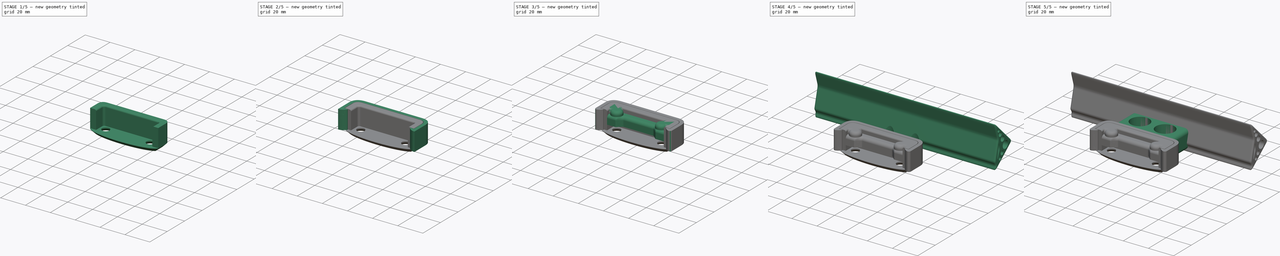
[diagram: build sequence overview — one tinted view per stage of 5, left to right]
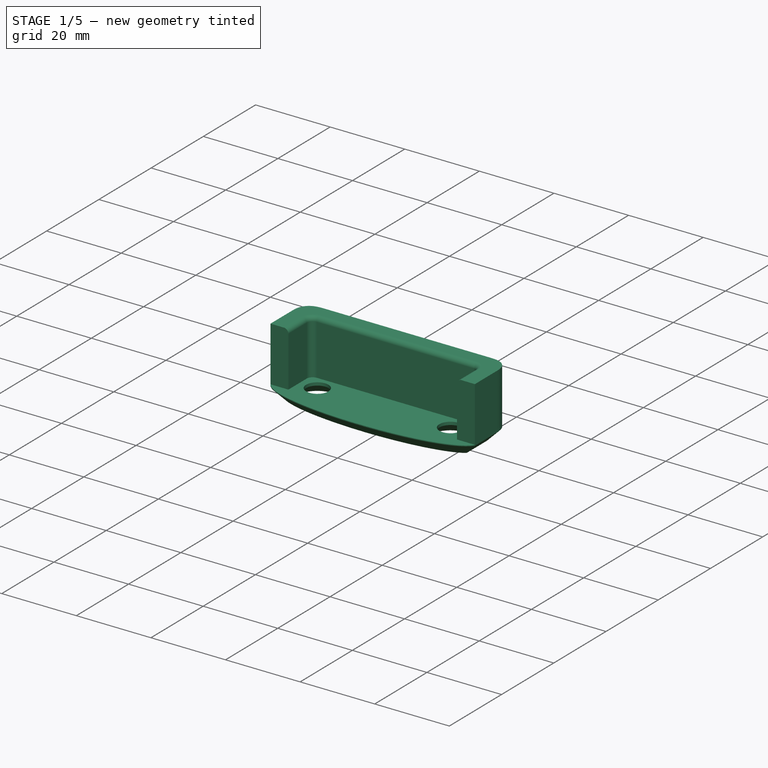
[diagram: stage 1 of 5 — iso view after this stage's code; geometry added in this stage tinted green]
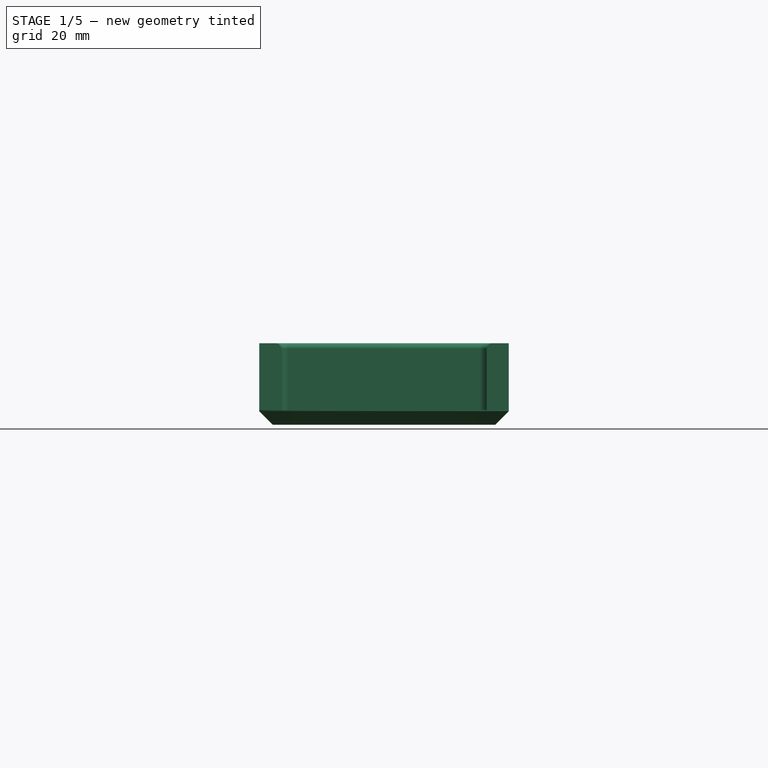
[diagram: stage 1 of 5 — front view after this stage's code; geometry added in this stage tinted green]
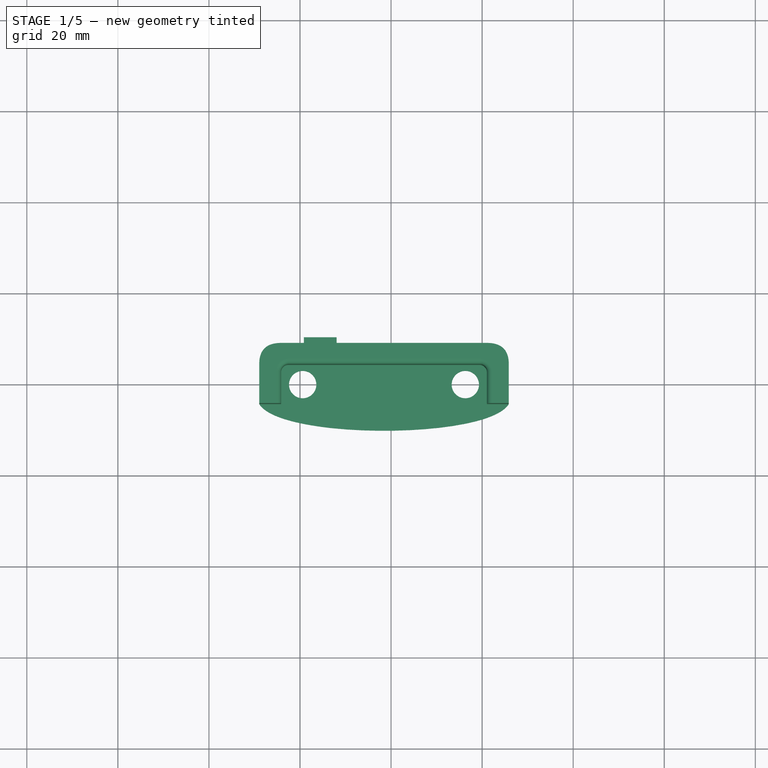
[diagram: stage 1 of 5 — top view after this stage's code; geometry added in this stage tinted green]
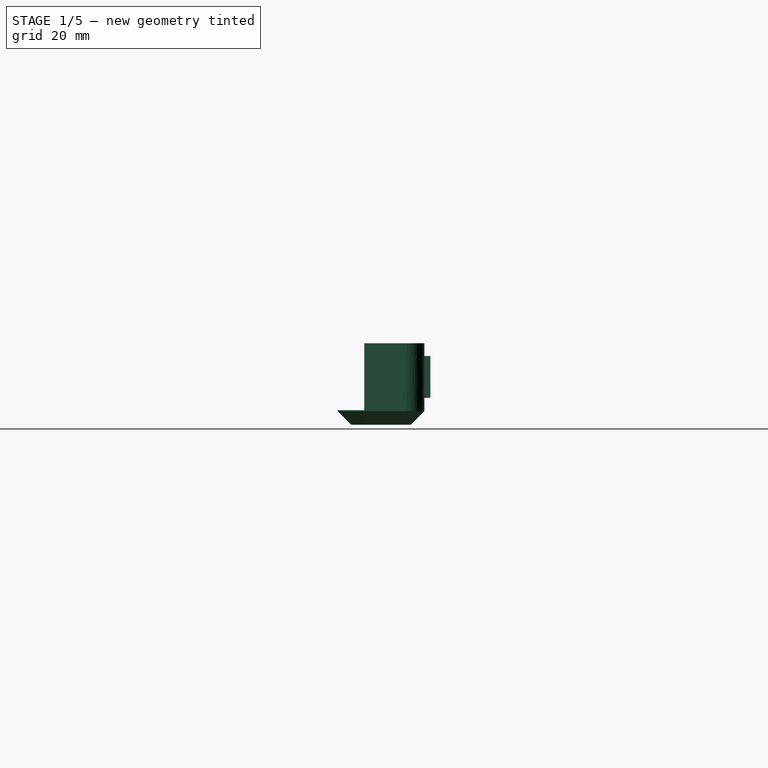
[diagram: stage 1 of 5 — right view after this stage's code; geometry added in this stage tinted green]
FCSTD DOCUMENT  (FreeCAD 0.19R0.19.2)
Label: 045
License: All rights reserved
LicenseURL: http://en.wikipedia.org/wiki/All_rights_reserved
objects: Part::Fillet×7, Sketcher::SketchObject×6, Part::Extrusion×6, Part::Box×5, Part::MultiFuse×5, Part::Cylinder×4, Part::Cut×3, Part::Chamfer×2
note: 38 computed .brp shape members not serialized (recipe doc carries the construction recipe); baked Part::Feature solids carry a one-line shape summary decoded from their .brp

FEATURE [Sketcher::SketchObject] Sketch001  label="attatchmentPieceSurround"
  FullyConstrained = true
  sketch-geometry (18):
    g0: LineSegment StartX=25.85 StartY=-4.3 StartZ=0 EndX=21.05 EndY=-4.3 EndZ=0
    g1: LineSegment StartX=25.85 StartY=-4.3 StartZ=0 EndX=25.85 EndY=4.3 EndZ=0
    g2: LineSegment StartX=-21.05 StartY=8.9 StartZ=0 EndX=21.05 EndY=8.9 EndZ=0
    g3: Circle CenterX=21.05 CenterY=8.9 CenterZ=0 NormalX=0 NormalY=0 NormalZ=1 AngleXU=0 Radius=1
    g4: Circle CenterX=25.85 CenterY=8.9 CenterZ=0 NormalX=0 NormalY=0 NormalZ=1 AngleXU=0 Radius=1
    g5: Circle CenterX=25.85 CenterY=4.3 CenterZ=0 NormalX=0 NormalY=0 NormalZ=1 AngleXU=0 Radius=1
    g6: BSplineCurve PolesCount=3 KnotsCount=2 Degree=2 IsPeriodic=0
    g7: GeomPoint X=21.05 Y=8.9 Z=0
    g8: GeomPoint X=25.85 Y=4.3 Z=0
    g9: ArcOfCircle CenterX=19.45 CenterY=2.7 CenterZ=0 NormalX=0 NormalY=0 NormalZ=1 AngleXU=0 Radius=1.6 StartAngle=0 EndAngle=1.5708
    g10: LineSegment StartX=21.05 StartY=2.7 StartZ=0 EndX=21.05 EndY=-4.3 EndZ=0
    g11: BSplineCurve PolesCount=3 KnotsCount=2 Degree=2 IsPeriodic=0
    g12: LineSegment StartX=-28.95 StartY=-4.3 StartZ=0 EndX=-28.95 EndY=4.3 EndZ=0
    g13: LineSegment StartX=-24.15 StartY=-4.3 StartZ=0 EndX=-28.95 EndY=-4.3 EndZ=0
    g14: LineSegment StartX=-24.15 StartY=2.7 StartZ=0 EndX=-24.15 EndY=-4.3 EndZ=0
    g15: ArcOfCircle CenterX=-22.55 CenterY=2.7 CenterZ=0 NormalX=0 NormalY=0 NormalZ=1 AngleXU=0 Radius=1.6 StartAngle=1.5708 EndAngle=3.14159
    g16: LineSegment StartX=-24.15 StartY=8.9 StartZ=0 EndX=-21.05 EndY=8.9 EndZ=0
    g17: LineSegment StartX=-22.55 StartY=4.3 StartZ=0 EndX=19.45 EndY=4.3 EndZ=0
  constraints (38):
    c: Horizontal(g0)
    c: Vertical(g1)
    c: Coincident(g1,g0)
    c: Horizontal(g2)
    c: Distance(g2) = 42.1
    c: Block(g2)
    c: Coincident(g6,g2)
    c: Weight(g3) = 1
    c: Equal(g3,g4)
    c: Equal(g3,g5)
    c: Coincident(g6,g1)
    c: InternalAlignment(g3,g6)
    c: InternalAlignment(g4,g6)
    c: InternalAlignment(g5,g6)
    c: InternalAlignment(g7,g6)
    c: InternalAlignment(g8,g6)
    c: Block(g0)
    c: Block(g6)
    c: Block(g9)
    c: Coincident(g10,g9)
    c: Coincident(g10,g0)
    c: Vertical(g10)
    c: Horizontal(g13)
    c: Coincident(g12,g13)
    c: Vertical(g12)
    c: Coincident(g11,g12)
    c: Block(g12)
    c: Block(g11)
    c: Block(g15)
    c: Coincident(g14,g15)
    c: Coincident(g14,g13)
    c: Vertical(g14)
    c: Coincident(g16,g11)
    c: Coincident(g16,g2)
    c: Horizontal(g16)
    c: Coincident(g17,g15)
    c: Coincident(g17,g9)
    c: Horizontal(g17)
FEATURE [Part::Extrusion] Extrude001  label="attatchmentPieceSurround001"
  Base = -> Sketch001
  Dir = (0,0,1)
  DirMode = 2
  FaceMakerClass = Part::FaceMakerBullseye
  LengthFwd = 14.7
  LengthRev = 0
  Placement = pos=(0,0,-4.1) rot=(0,0,1;0rad)
  Solid = true
  Symmetric = false
FEATURE [Sketcher::SketchObject] Sketch005  label="attatchmentPieceBottom"
  FullyConstrained = true
  sketch-geometry (20):
    g0: LineSegment StartX=25.85 StartY=-4.3 StartZ=0 EndX=25.85 EndY=4.3 EndZ=0
    g1: LineSegment StartX=-21.05 StartY=8.9 StartZ=0 EndX=21.05 EndY=8.9 EndZ=0
    g2: Circle CenterX=21.05 CenterY=8.9 CenterZ=0 NormalX=0 NormalY=0 NormalZ=1 AngleXU=0 Radius=1
    g3: Circle CenterX=25.85 CenterY=8.9 CenterZ=0 NormalX=0 NormalY=0 NormalZ=1 AngleXU=0 Radius=1
    g4: Circle CenterX=25.85 CenterY=4.3 CenterZ=0 NormalX=0 NormalY=0 NormalZ=1 AngleXU=0 Radius=1
    g5: BSplineCurve PolesCount=3 KnotsCount=2 Degree=2 IsPeriodic=0
    g6: GeomPoint X=21.05 Y=8.9 Z=0
    g7: GeomPoint X=25.85 Y=4.3 Z=0
    g8: BSplineCurve PolesCount=3 KnotsCount=2 Degree=2 IsPeriodic=0
    g9: LineSegment StartX=-28.95 StartY=-4.3 StartZ=0 EndX=-28.95 EndY=4.3 EndZ=0
    g10: LineSegment StartX=-24.15 StartY=8.9 StartZ=0 EndX=-21.05 EndY=8.9 EndZ=0
    g11: Circle CenterX=-19.41 CenterY=0 CenterZ=0 NormalX=0 NormalY=0 NormalZ=1 AngleXU=0 Radius=3
    g12: Circle CenterX=16.3103 CenterY=0 CenterZ=0 NormalX=0 NormalY=0 NormalZ=1 AngleXU=0 Radius=3
    g13-g16: Circle x4 (B-spline internal-alignment scaffolding for g17; pole/knot coordinates omitted)
    g17: BSplineCurve PolesCount=4 KnotsCount=2 Degree=3 IsPeriodic=0
    g18: GeomPoint X=-28.95 Y=-4.3 Z=0
    g19: GeomPoint X=25.85 Y=-4.3 Z=0
  constraints (36):
    c: Vertical(g0)
    c: Horizontal(g1)
    c: Distance(g1) = 42.1
    c: Block(g1)
    c: Coincident(g5,g1)
    c: Weight(g2) = 1
    c: Equal(g2,g3)
    c: Equal(g2,g4)
    c: Coincident(g5,g0)
    c: InternalAlignment(g2,g5)
    c: InternalAlignment(g3,g5)
    c: InternalAlignment(g4,g5)
    c: InternalAlignment(g6,g5)
    c: InternalAlignment(g7,g5)
    c: Block(g5)
    c: Vertical(g9)
    c: Coincident(g8,g9)
    c: Block(g9)
    c: Block(g8)
    c: Coincident(g10,g8)
    c: Coincident(g10,g1)
    c: Horizontal(g10)
    c: PointOnObject(g12,g-1)
    c: PointOnObject(g11,g-1)
    c: Block(g11)
    c: Block(g12)
    c: Coincident(g17,g9)
    c: Weight(g13) = 1
    c: Equal(g13,g14)
    c: Equal(g13,g15)
    c: Equal(g13,g16)
    c: Coincident(g17,g0)
    c: InternalAlignment(g13-g16 -> g17) x4
    c: InternalAlignment(g18,g17)
    c: InternalAlignment(g19,g17)
    c: Block(g17)
FEATURE [Part::Extrusion] Extrude005  label="attatchmentPieceBottom001"
  Base = -> Sketch005
  Dir = (0,0,1)
  DirMode = 2
  FaceMakerClass = Part::FaceMakerBullseye
  LengthFwd = 3.2
  LengthRev = 0
  Placement = pos=(0,0,-7.3) rot=(0,0,1;0rad)
  Solid = true
  Symmetric = false
FEATURE [Part::Box] Box004  label="attatchmentPieceSurroundBump001"
  AttacherType = Attacher::AttachEngine3D
  Height = 9.2
  Length = 7.2
  Placement = pos=(-19.15,8.9,-1.4) rot=(0,0,1;0rad)
  Width = 1.3
FEATURE [Part::Chamfer] Chamfer  label="attatchmentPieceBottom002"
  Base = -> Extrude005
  Edges = 7 edges r=2.99: [Edge3,Edge6,Edge9,Edge12,Edge15,Edge18,Edge20]
FEATURE [Part::Fillet] Fillet004  label="attatchmentPieceSurround002"
  Base = -> Extrude001
  Edges = 3 edges r=1.2: [Edge19,Edge25,Edge31]
FEATURE [Part::Chamfer] Chamfer001  label="attatchmentPieceBottom003"
  Base = -> Chamfer
  Edges = 2 edges r=2.4: [Edge29,Edge30]
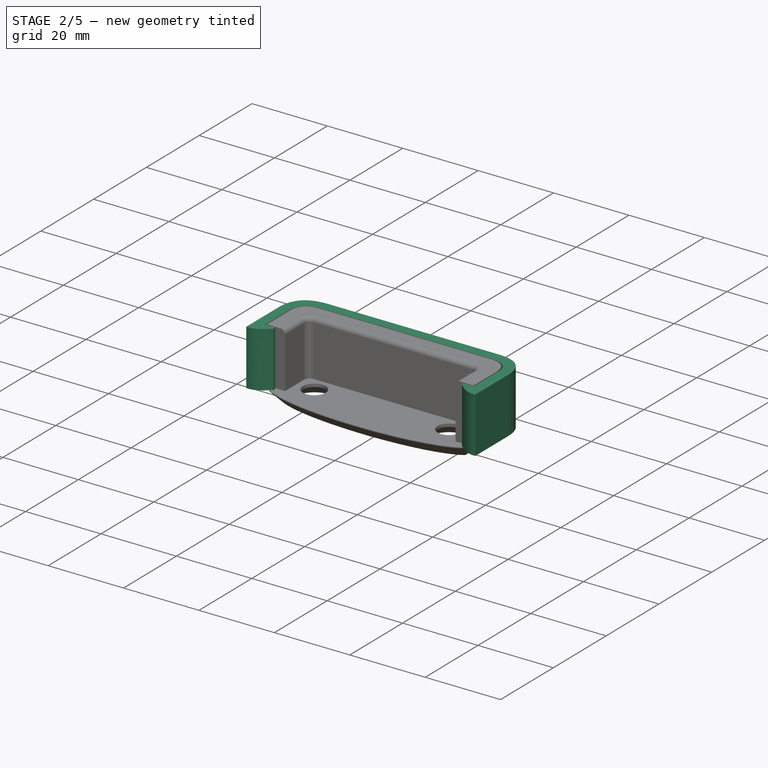
[diagram: stage 2 of 5 — iso view after this stage's code; geometry added in this stage tinted green]
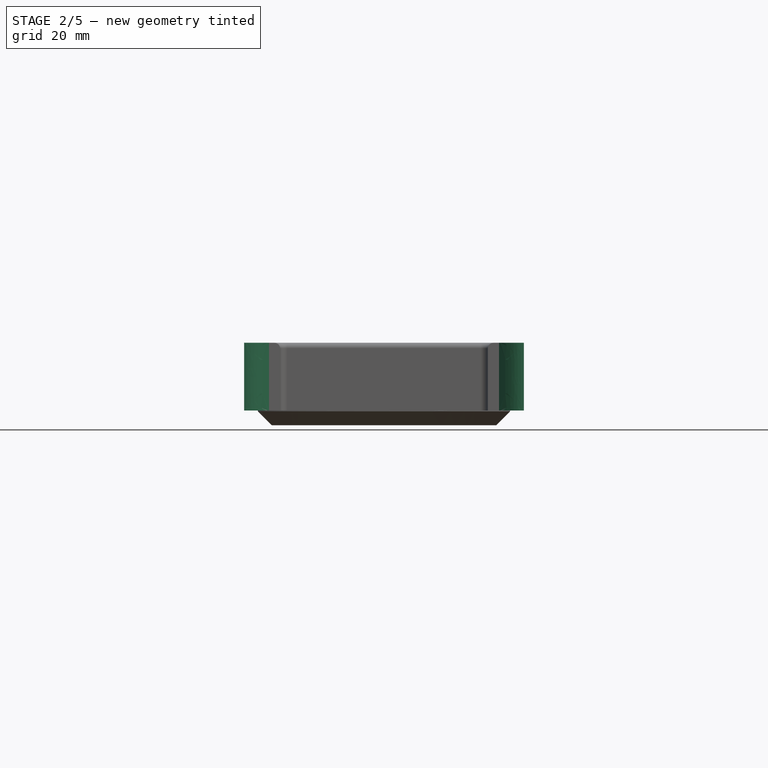
[diagram: stage 2 of 5 — front view after this stage's code; geometry added in this stage tinted green]
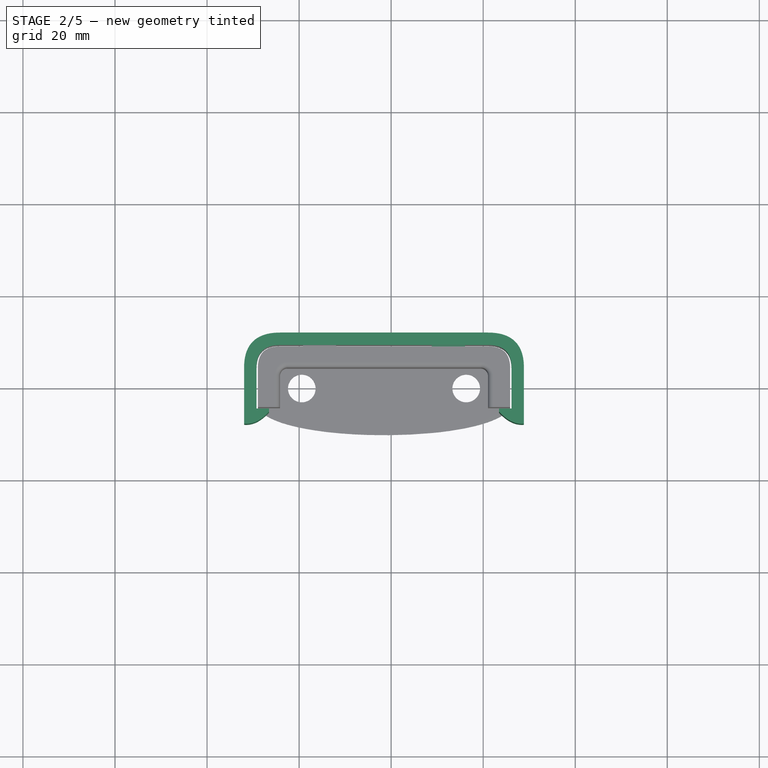
[diagram: stage 2 of 5 — top view after this stage's code; geometry added in this stage tinted green]
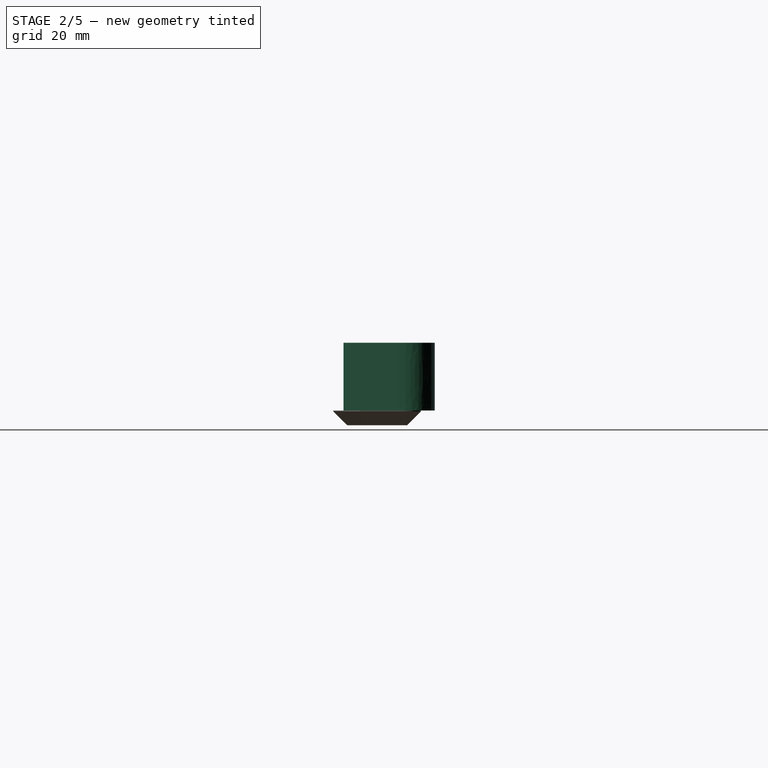
[diagram: stage 2 of 5 — right view after this stage's code; geometry added in this stage tinted green]
FEATURE [Part::Extrusion] Extrude006  label="mainBumpperPieceAttatchment001"
  Base = -> Sketch003
  Dir = (0,0,1)
  DirMode = 2
  FaceMakerClass = Part::FaceMakerBullseye
  LengthFwd = 14.7
  LengthRev = 0
  Placement = pos=(0,0,-4.1) rot=(0,0,1;0rad)
  Solid = true
  Symmetric = false
FEATURE [Part::Box] Box001  label="bumpperExtensionBumpHole"
  AttacherType = Attacher::AttachEngine3D
  Height = 10
  Length = 8
  Placement = pos=(8.45,9.2,-1.8) rot=(0,0,1;0rad)
  Width = 1.3
FEATURE [Part::Box] Box002  label="bumpperExtensionBumpHole001"
  AttacherType = Attacher::AttachEngine3D
  Height = 10
  Length = 8
  Placement = pos=(-19.55,9.2,-1.8) rot=(0,0,1;0rad)
  Width = 1.3
FEATURE [Part::Box] Box003  label="attatchmentPieceSurroundBump"
  AttacherType = Attacher::AttachEngine3D
  Height = 9.2
  Length = 7.2
  Placement = pos=(8.85,8.9,-1.4) rot=(0,0,1;0rad)
  Width = 1.3
FEATURE [Part::MultiFuse] Fusion002  label="attatchmentPieceSurroundBump002"
  Shapes = -> [Box004,Box003]
FEATURE [Part::MultiFuse] Fusion003  label="bumpperExtensionBumpHole002"
  Shapes = -> [Box002,Box001]
FEATURE [Part::MultiFuse] Fusion004  label="attatchmentPieceSurround003"
  Shapes = -> [Fusion002,Fillet004]
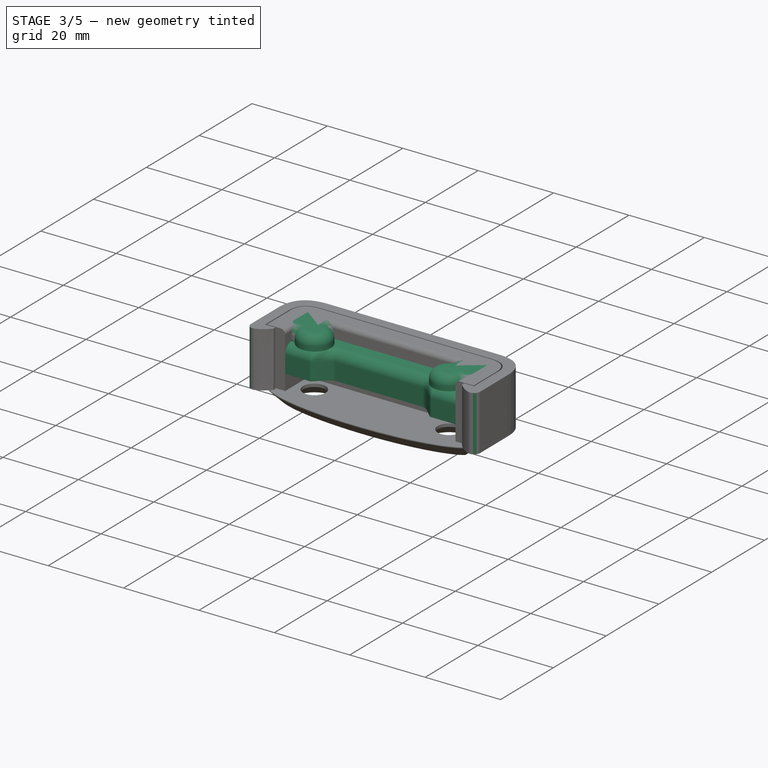
[diagram: stage 3 of 5 — iso view after this stage's code; geometry added in this stage tinted green]
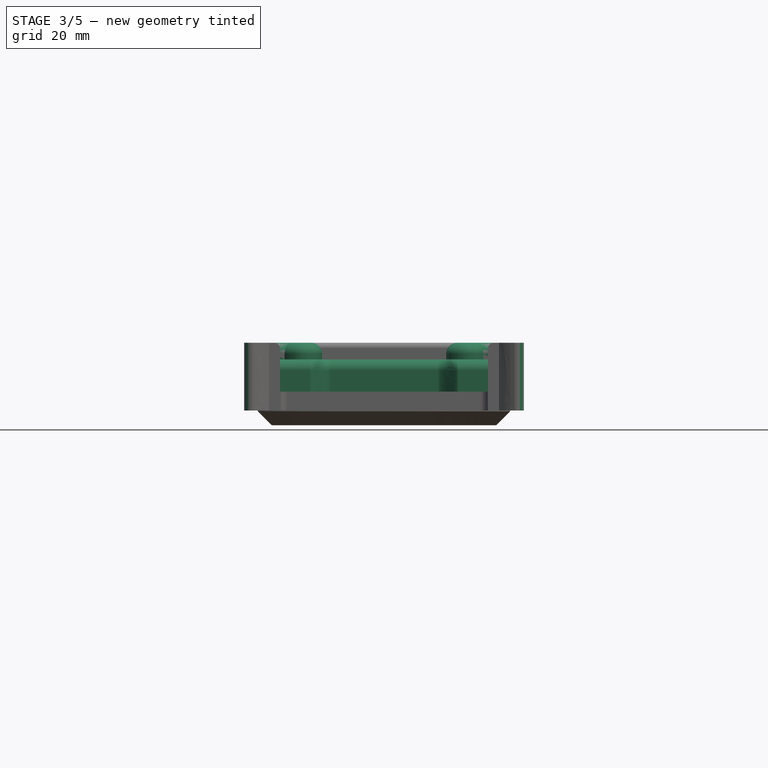
[diagram: stage 3 of 5 — front view after this stage's code; geometry added in this stage tinted green]
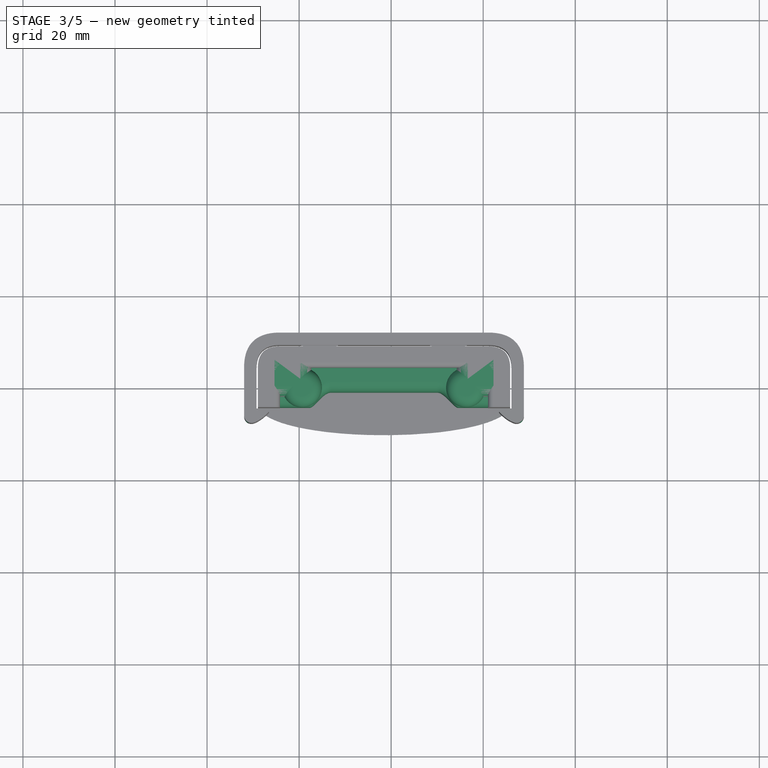
[diagram: stage 3 of 5 — top view after this stage's code; geometry added in this stage tinted green]
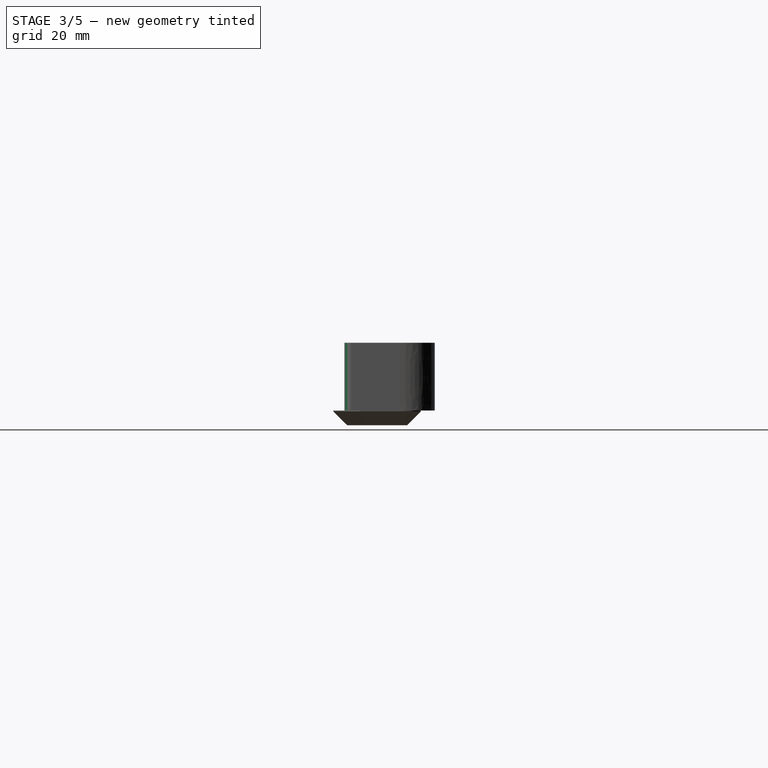
[diagram: stage 3 of 5 — right view after this stage's code; geometry added in this stage tinted green]
FEATURE [Sketcher::SketchObject] Sketch  label="attatchmentPiece"
  FullyConstrained = true
  sketch-geometry (20):
    g0: Circle CenterX=16.25 CenterY=0 CenterZ=0 NormalX=0 NormalY=0 NormalZ=1 AngleXU=0 Radius=1.5
    g1: LineSegment StartX=21.05 StartY=0 StartZ=0 EndX=21.05 EndY=-1 EndZ=0
    g2: LineSegment StartX=21.05 StartY=-1 StartZ=0 EndX=21.05 EndY=-4.3 EndZ=0
    g3: LineSegment StartX=-24.15 StartY=4.3 StartZ=0 EndX=21.05 EndY=4.3 EndZ=0
    g4: LineSegment StartX=21.05 StartY=0 StartZ=0 EndX=21.05 EndY=4.3 EndZ=0
    g5-g8: Circle x4 (B-spline internal-alignment scaffolding for g9; pole/knot coordinates omitted)
    g9: BSplineCurve PolesCount=4 KnotsCount=2 Degree=3 IsPeriodic=0
    g10: GeomPoint X=10.05 Y=-1 Z=0
    g11: GeomPoint X=14.55 Y=-4.3 Z=0
    g12: LineSegment StartX=10.05 StartY=-1 StartZ=0 EndX=-10.05 EndY=-1 EndZ=0
    g13: LineSegment StartX=14.55 StartY=-4.3 StartZ=0 EndX=21.05 EndY=-4.3 EndZ=0
    g14: LineSegment StartX=-24.15 StartY=4.3 StartZ=0 EndX=-24.15 EndY=-4.3 EndZ=0
    g15: LineSegment StartX=-13.15 StartY=-1 StartZ=0 EndX=-10.05 EndY=-1 EndZ=0
    g16: LineSegment StartX=-24.15 StartY=-4.3 StartZ=0 EndX=-19.35 EndY=-4.3 EndZ=0
    g17: Circle CenterX=-19.35 CenterY=0 CenterZ=0 NormalX=0 NormalY=0 NormalZ=1 AngleXU=0 Radius=1.5
    g18: LineSegment StartX=-19.35 StartY=-4.3 StartZ=0 EndX=-17.65 EndY=-4.3 EndZ=0
    g19: BSplineCurve PolesCount=4 KnotsCount=2 Degree=3 IsPeriodic=0
  constraints (41):
    c: Block(g0)
    c: Vertical(g1)
    c: Coincident(g2,g1)
    c: Vertical(g2)
    c: Block(g1)
    c: Horizontal(g3)
    c: Vertical(g4)
    c: Coincident(g4,g3)
    c: Block(g3)
    c: Block(g4)
    c: Weight(g5) = 1
    c: Equal(g5,g6)
    c: Equal(g5,g7)
    c: Equal(g5,g8)
    c: InternalAlignment(g5-g8 -> g9) x4
    c: InternalAlignment(g10,g9)
    c: InternalAlignment(g11,g9)
    c: Block(g9)
    c: Coincident(g12,g9)
    c: Horizontal(g12)
    c: Coincident(g13,g9)
    c: Coincident(g13,g2)
    c: Horizontal(g13)
    c: Distance(g3) = 45.2
    c: Coincident(g14,g3)
    c: Vertical(g14)
    c: Horizontal(g15)
    c: Distance(g15) = 3.1
    c: Block(g17)
    c: Horizontal(g16)
    c: Block(g19)
    c: Coincident(g18,g16)
    c: Coincident(g18,g19)
    c: Horizontal(g18)
    c: Block(g18)
    c: Coincident(g19,g15)
    c: Block(g16)
    c: Block(g12)
    c: Block(g14)
    c: Distance(g16) = 4.8
    c: Distance(g18) = 1.7
FEATURE [Part::Extrusion] Extrude  label="attatchmentPiece001"
  Base = -> Sketch
  Dir = (0,0,1)
  DirMode = 2
  FaceMakerClass = Part::FaceMakerBullseye
  LengthFwd = 7
  LengthRev = 0
  Solid = true
  Symmetric = false
FEATURE [Sketcher::SketchObject] Sketch002  label="attatchmentPieceEndScrewHoleCaps"
  FullyConstrained = true
  sketch-geometry (10):
    g0: ArcOfCircle CenterX=16.25 CenterY=0 CenterZ=0 NormalX=0 NormalY=0 NormalZ=1 AngleXU=0 Radius=4.3 StartAngle=2.05456 EndAngle=5.79942
    g1: LineSegment StartX=14.25 StartY=3.80657 StartZ=0 EndX=14.25 EndY=6 EndZ=0
    g2: LineSegment StartX=20.0566 StartY=-2 StartZ=0 EndX=22.25 EndY=-2 EndZ=0
    g3: LineSegment StartX=22.25 StartY=-2 StartZ=0 EndX=22.25 EndY=6 EndZ=0
    g4: LineSegment StartX=14.25 StartY=6 StartZ=0 EndX=22.25 EndY=6 EndZ=0
    g5: LineSegment StartX=-25.35 StartY=-2 StartZ=0 EndX=-25.35 EndY=6 EndZ=0
    g6: LineSegment StartX=-25.35 StartY=-2 StartZ=0 EndX=-23.1566 EndY=-2 EndZ=0
    g7: LineSegment StartX=-17.35 StartY=6 StartZ=0 EndX=-25.35 EndY=6 EndZ=0
    g8: LineSegment StartX=-17.35 StartY=3.80657 StartZ=0 EndX=-17.35 EndY=6 EndZ=0
    g9: ArcOfCircle CenterX=-19.35 CenterY=0 CenterZ=0 NormalX=0 NormalY=0 NormalZ=1 AngleXU=0 Radius=4.3 StartAngle=3.62536 EndAngle=7.37022
  constraints (25):
    c: Block(g0)
    c: Vertical(g1)
    c: Horizontal(g2)
    c: Coincident(g3,g2)
    c: Vertical(g3)
    c: Coincident(g4,g1)
    c: Horizontal(g4)
    c: Coincident(g3,g4)
    c: Block(g4)
    c: Block(g3)
    c: Coincident(g0,g1)
    c: Coincident(g0,g2)
    c: Block(g1)
    c: Block(g9)
    c: Horizontal(g6)
    c: Vertical(g8)
    c: Coincident(g7,g8)
    c: Horizontal(g7)
    c: Coincident(g5,g6)
    c: Vertical(g5)
    c: Coincident(g5,g7)
    c: Block(g7)
    c: Block(g5)
    c: Coincident(g9,g6)
    c: Coincident(g9,g8)
FEATURE [Part::Extrusion] Extrude002  label="attatchmentPieceEndScrewHoleCaps001"
  Base = -> Sketch002
  Dir = (0,0,1)
  DirMode = 2
  FaceMakerClass = Part::FaceMakerBullseye
  LengthFwd = 3.6
  LengthRev = 0
  Placement = pos=(0,0,7) rot=(0,0,1;0rad)
  Solid = true
  Symmetric = false
FEATURE [Part::Cut] Cut002  label="mainBumpperPieceAttatchment002"
  Base = -> Extrude006
  Tool = -> Fusion003
FEATURE [Part::Fillet] Fillet003  label="attatchmentPieceEndScrewHoleCaps002"
  Base = -> Extrude002
  Edges = 6 edges r=2.4: [Edge4,Edge7,Edge15,Edge25,Edge28,Edge30]
FEATURE [Part::Fillet] Fillet005  label="attatchmentPiece002"
  Base = -> Extrude
  Edges = 7 edges r=2.4: [Edge16,Edge19,Edge22,Edge25,Edge28,Edge31,Edge34]
FEATURE [Part::Fillet] Fillet006  label="mainBumpperPieceAttatchment003"
  Base = -> Cut002
  Edges = 2 edges r=1.6: [Edge2,Edge55]
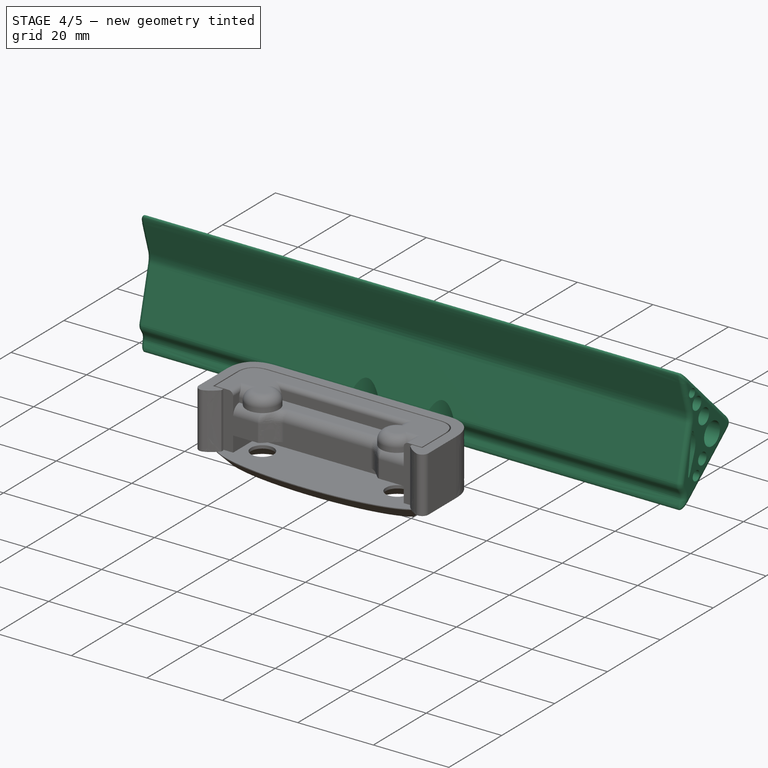
[diagram: stage 4 of 5 — iso view after this stage's code; geometry added in this stage tinted green]
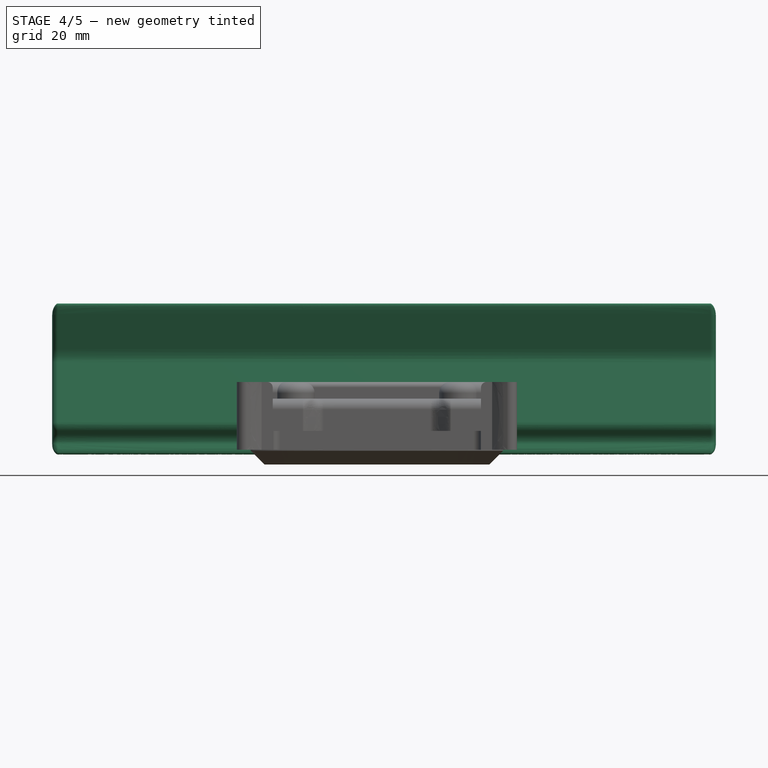
[diagram: stage 4 of 5 — front view after this stage's code; geometry added in this stage tinted green]
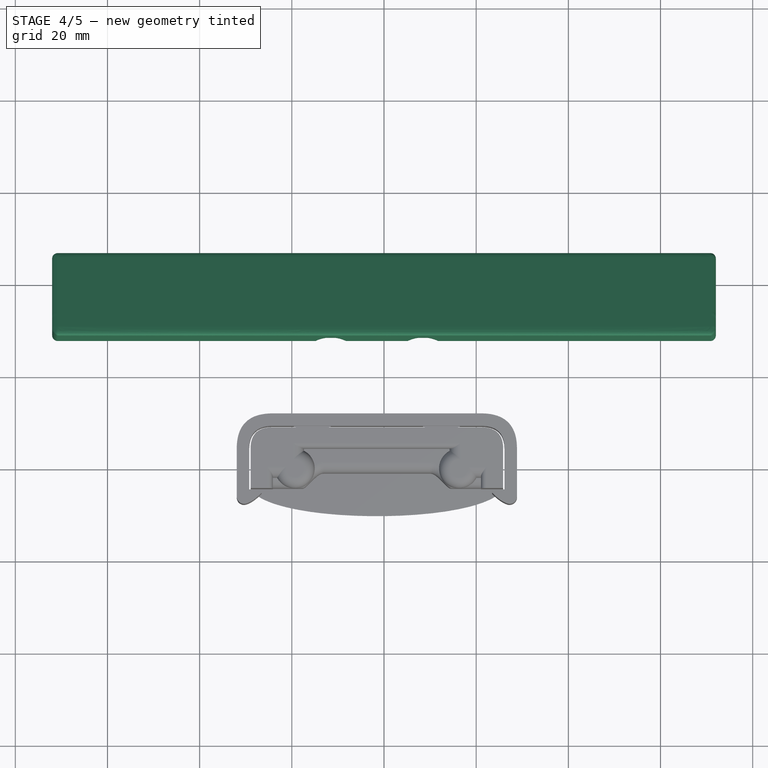
[diagram: stage 4 of 5 — top view after this stage's code; geometry added in this stage tinted green]
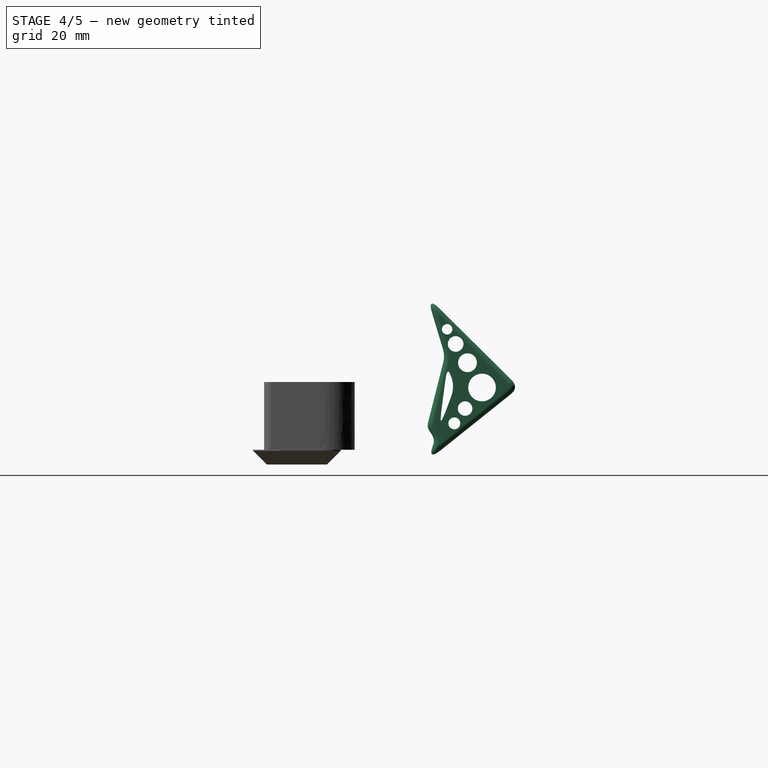
[diagram: stage 4 of 5 — right view after this stage's code; geometry added in this stage tinted green]
FEATURE [Sketcher::SketchObject] Sketch004  label="bumpperMain"
  FullyConstrained = true
  Placement = pos=(0,0,0) rot=(0.57735,0.57735,0.57735;2.0944rad)
  sketch-geometry (62):
    g0: Circle CenterX=-3.12329 CenterY=2.49901 CenterZ=0 NormalX=0 NormalY=0 NormalZ=1 AngleXU=0 Radius=1
    g1: Circle CenterX=0 CenterY=0 CenterZ=0 NormalX=0 NormalY=0 NormalZ=1 AngleXU=0 Radius=1
    g2: Circle CenterX=-1.35243 CenterY=3.60648 CenterZ=0 NormalX=0 NormalY=0 NormalZ=1 AngleXU=0 Radius=1
    g3: BSplineCurve PolesCount=3 KnotsCount=2 Degree=2 IsPeriodic=0
    g4: GeomPoint X=-3.12329 Y=2.49901 Z=0
    g5: GeomPoint X=-1.35243 Y=3.60648 Z=0
    g6: Circle CenterX=-2.83953 CenterY=33.0261 CenterZ=0 NormalX=0 NormalY=0 NormalZ=1 AngleXU=0 Radius=1
    g7: Circle CenterX=0 CenterY=35.8434 CenterZ=0 NormalX=0 NormalY=0 NormalZ=1 AngleXU=0 Radius=1
    g8: Circle CenterX=-1.15771 CenterY=32.0146 CenterZ=0 NormalX=0 NormalY=0 NormalZ=1 AngleXU=0 Radius=1
    g9: BSplineCurve PolesCount=3 KnotsCount=2 Degree=2 IsPeriodic=0
    g10: GeomPoint X=-2.83953 Y=33.0261 Z=0
    g11: GeomPoint X=-1.15771 Y=32.0146 Z=0
    g12: Circle CenterX=-18.2963 CenterY=17.6904 CenterZ=0 NormalX=0 NormalY=0 NormalZ=1 AngleXU=0 Radius=1
    g13: Circle CenterX=-20 CenterY=16 CenterZ=0 NormalX=0 NormalY=0 NormalZ=1 AngleXU=0 Radius=1
    g14: Circle CenterX=-18.1259 CenterY=14.5008 CenterZ=0 NormalX=0 NormalY=0 NormalZ=1 AngleXU=0 Radius=1
    g15: BSplineCurve PolesCount=3 KnotsCount=2 Degree=2 IsPeriodic=0
    g16: GeomPoint X=-18.2963 Y=17.6904 Z=0
    g17: GeomPoint X=-18.1259 Y=14.5008 Z=0
    g18: LineSegment StartX=-18.2963 StartY=17.6904 StartZ=0 EndX=-2.83953 EndY=33.0261 EndZ=0
    g19: LineSegment StartX=-18.1259 StartY=14.5008 StartZ=0 EndX=-3.12329 EndY=2.49901 EndZ=0
    g20: Circle CenterX=-11.9527 CenterY=16 CenterZ=0 NormalX=0 NormalY=0 NormalZ=1 AngleXU=0 Radius=2.99582
    g21: Circle CenterX=-8.803 CenterY=21.3731 CenterZ=0 NormalX=0 NormalY=0 NormalZ=1 AngleXU=0 Radius=2.03939
    g22: Circle CenterX=-6.23123 CenterY=25.4475 CenterZ=0 NormalX=0 NormalY=0 NormalZ=1 AngleXU=0 Radius=1.69309
    g23: Circle CenterX=-4.38186 CenterY=28.6261 CenterZ=0 NormalX=0 NormalY=0 NormalZ=1 AngleXU=0 Radius=1.13029
    g24: Circle CenterX=-8.28033 CenterY=11.4296 CenterZ=0 NormalX=0 NormalY=0 NormalZ=1 AngleXU=0 Radius=1.57213
    g25: Circle CenterX=-5.93972 CenterY=8.22213 CenterZ=0 NormalX=0 NormalY=0 NormalZ=1 AngleXU=0 Radius=1.28743
    g26: Circle CenterX=-3.47023 CenterY=24.3665 CenterZ=0 NormalX=0 NormalY=0 NormalZ=1 AngleXU=0 Radius=1
    g27: Circle CenterX=-3.90437 CenterY=22.9307 CenterZ=0 NormalX=0 NormalY=0 NormalZ=1 AngleXU=0 Radius=1
    g28: Circle CenterX=-3.53772 CenterY=21.4762 CenterZ=0 NormalX=0 NormalY=0 NormalZ=1 AngleXU=0 Radius=1
    g29: BSplineCurve PolesCount=3 KnotsCount=2 Degree=2 IsPeriodic=0
    g30: GeomPoint X=-3.47023 Y=24.3665 Z=0
    g31: GeomPoint X=-3.53772 Y=21.4762 Z=0
    g32: LineSegment StartX=-1.15771 StartY=32.0146 StartZ=0 EndX=-3.47023 EndY=24.3665 EndZ=0
    g33: Circle CenterX=-5.41867 CenterY=17.9226 CenterZ=0 NormalX=0 NormalY=0 NormalZ=1 AngleXU=0 Radius=1
    g34: Circle CenterX=-6 CenterY=16 CenterZ=0 NormalX=0 NormalY=0 NormalZ=1 AngleXU=0 Radius=1
    g35: Circle CenterX=-5.22753 CenterY=13.9401 CenterZ=0 NormalX=0 NormalY=0 NormalZ=1 AngleXU=0 Radius=1
    g36: BSplineCurve PolesCount=3 KnotsCount=2 Degree=2 IsPeriodic=0
    g37: GeomPoint X=-5.41867 Y=17.9226 Z=0
    g38: GeomPoint X=-5.22753 Y=13.9401 Z=0
    g39: Circle CenterX=-3.98946 CenterY=10.6386 CenterZ=0 NormalX=0 NormalY=0 NormalZ=1 AngleXU=0 Radius=1
    g40: Circle CenterX=-2.58497 CenterY=6.89324 CenterZ=0 NormalX=0 NormalY=0 NormalZ=1 AngleXU=0 Radius=1
    g41: Circle CenterX=-3.11001 CenterY=10.8586 CenterZ=0 NormalX=0 NormalY=0 NormalZ=1 AngleXU=0 Radius=1
    g42: BSplineCurve PolesCount=3 KnotsCount=2 Degree=2 IsPeriodic=0
    g43: GeomPoint X=-3.98946 Y=10.6386 Z=0
    g44: GeomPoint X=-3.11001 Y=10.8586 Z=0
    g45: Circle CenterX=-1.35243 CenterY=3.60648 CenterZ=0 NormalX=0 NormalY=0 NormalZ=1 AngleXU=0 Radius=1
    g46: Circle CenterX=-1.76142 CenterY=4.69712 CenterZ=0 NormalX=0 NormalY=0 NormalZ=1 AngleXU=0 Radius=1
    g47: Circle CenterX=-1.05937 CenterY=5.79125 CenterZ=0 NormalX=0 NormalY=0 NormalZ=1 AngleXU=0 Radius=1
    g48: BSplineCurve PolesCount=3 KnotsCount=2 Degree=2 IsPeriodic=0
    g49: GeomPoint X=-1.35243 Y=3.60648 Z=0
    g50: GeomPoint X=-1.05937 Y=5.79125 Z=0
    g51: Circle CenterX=-0.519336 CenterY=6.6329 CenterZ=0 NormalX=0 NormalY=0 NormalZ=1 AngleXU=0 Radius=1
    g52: Circle CenterX=0 CenterY=7.44228 CenterZ=0 NormalX=0 NormalY=0 NormalZ=1 AngleXU=0 Radius=1
    g53: Circle CenterX=-0.244436 CenterY=8.41194 CenterZ=0 NormalX=0 NormalY=0 NormalZ=1 AngleXU=0 Radius=1
    g54: BSplineCurve PolesCount=3 KnotsCount=2 Degree=2 IsPeriodic=0
    g55: GeomPoint X=-0.519336 Y=6.6329 Z=0
    g56: GeomPoint X=-0.244436 Y=8.41194 Z=0
    g57: LineSegment StartX=-3.53772 StartY=21.4762 StartZ=0 EndX=-0.244436 EndY=8.41194 EndZ=0
    g58: LineSegment StartX=-5.22753 StartY=13.9401 StartZ=0 EndX=-3.98946 EndY=10.6386 EndZ=0
    g59: LineSegment StartX=-1.05937 StartY=5.79125 StartZ=0 EndX=-0.519336 EndY=6.6329 EndZ=0
    g60: BSplineCurve PolesCount=3 KnotsCount=2 Degree=2 IsPeriodic=0
    g61: LineSegment StartX=-4.0304 StartY=17.8099 StartZ=0 EndX=-3.11001 EndY=10.8586 EndZ=0
  constraints (96):
    c: Weight(g0) = 1
    c: Equal(g0,g1)
    c: Equal(g0,g2)
    c: InternalAlignment(g0,g3)
    c: InternalAlignment(g1,g3)
    c: InternalAlignment(g2,g3)
    c: InternalAlignment(g4,g3)
    c: InternalAlignment(g5,g3)
    c: Block(g3)
    c: Weight(g6) = 1
    c: Equal(g6,g7)
    c: Equal(g6,g8)
    c: InternalAlignment(g6,g9)
    c: InternalAlignment(g7,g9)
    c: InternalAlignment(g8,g9)
    c: InternalAlignment(g10,g9)
    c: InternalAlignment(g11,g9)
    c: Block(g9)
    c: Weight(g12) = 1
    c: Equal(g12,g13)
    c: Equal(g12,g14)
    c: InternalAlignment(g12,g15)
    c: InternalAlignment(g13,g15)
    c: InternalAlignment(g14,g15)
    c: InternalAlignment(g16,g15)
    c: InternalAlignment(g17,g15)
    c: Block(g15)
    c: Coincident(g18,g15)
    c: Coincident(g18,g9)
    c: Coincident(g19,g15)
    c: Coincident(g19,g3)
    c: Block(g25)
    c: Block(g24)
    c: Block(g20)
    c: Block(g21)
    c: Block(g22)
    c: Block(g23)
    c: Weight(g26) = 1
    c: Equal(g26,g27)
    c: Equal(g26,g28)
    c: InternalAlignment(g26,g29)
    c: InternalAlignment(g27,g29)
    c: InternalAlignment(g28,g29)
    c: InternalAlignment(g30,g29)
    c: InternalAlignment(g31,g29)
    c: Block(g29)
    c: Coincident(g32,g9)
    c: Coincident(g32,g29)
    c: Weight(g33) = 1
    c: Equal(g33,g34)
    c: Equal(g33,g35)
    c: InternalAlignment(g33,g36)
    c: InternalAlignment(g34,g36)
    c: InternalAlignment(g35,g36)
    c: InternalAlignment(g37,g36)
    c: InternalAlignment(g38,g36)
    c: Block(g36)
    c: Weight(g39) = 1
    c: Equal(g39,g40)
    c: Equal(g39,g41)
    c: InternalAlignment(g39,g42)
    c: InternalAlignment(g40,g42)
    c: InternalAlignment(g41,g42)
    c: InternalAlignment(g43,g42)
    c: InternalAlignment(g44,g42)
    c: Block(g42)
    c: Coincident(g48,g3)
    c: Weight(g45) = 1
    c: Equal(g45,g46)
    c: Equal(g45,g47)
    c: InternalAlignment(g45,g48)
    c: InternalAlignment(g46,g48)
    c: InternalAlignment(g47,g48)
    c: InternalAlignment(g49,g48)
    c: InternalAlignment(g50,g48)
    c: Block(g48)
    c: Weight(g51) = 1
    c: Equal(g51,g52)
    c: Equal(g51,g53)
    c: InternalAlignment(g51,g54)
    c: InternalAlignment(g52,g54)
    c: InternalAlignment(g53,g54)
    c: InternalAlignment(g55,g54)
    c: InternalAlignment(g56,g54)
    c: Block(g54)
    c: Coincident(g57,g29)
    c: Coincident(g57,g54)
    c: Block(g57)
    c: Coincident(g58,g36)
    c: Coincident(g58,g42)
    c: Coincident(g59,g48)
    c: Coincident(g59,g54)
    c: Block(g60)
    c: Coincident(g60,g36)
    c: Coincident(g61,g60)
    c: Coincident(g61,g42)
FEATURE [Part::Extrusion] Extrude004  label="bumpperMain001"
  Base = -> Sketch004
  Dir = (1,0,0)
  DirMode = 2
  FaceMakerClass = Part::FaceMakerBullseye
  LengthFwd = 144
  LengthRev = 0
  Placement = pos=(72,27.6,-6.6) rot=(0,0,1;3.14159rad)
  Solid = true
  Symmetric = false
FEATURE [Part::Cylinder] Cylinder002  label="removeFromBumpperExtension004"
  Angle = 360
  AttacherType = Attacher::AttachEngine3D
  Height = 20
  Placement = pos=(8.45,21.15,-8) rot=(0,0,1;0rad)
  Radius = 7.4
FEATURE [Part::Cylinder] Cylinder003  label="removeFromBumpperExtension005"
  Angle = 360
  AttacherType = Attacher::AttachEngine3D
  Height = 20
  Placement = pos=(-11.55,21.15,-8) rot=(0,0,1;0rad)
  Radius = 7.4
FEATURE [Part::MultiFuse] Fusion001  label="removeFromBumpperMain"
  Shapes = -> [Cylinder002,Cylinder003]
FEATURE [Part::Cut] Cut001  label="bumpperMain002"
  Base = -> Extrude004
  Tool = -> Fusion001
FEATURE [Part::Fillet] Fillet001
  Base = -> Cut001
  Edges = 11 edges r=1.2: [Edge4,Edge7,Edge10,Edge30,Edge31,Edge32,Edge33,Edge34,Edge35,Edge36,Edge37]
FEATURE [Part::Fillet] Fillet002  label="bumpperMain003"
  Base = -> Fillet001
  Edges = 11 edges r=1.2: [Edge4,Edge9,Edge13,Edge14,Edge15,Edge16,Edge17,Edge18,Edge19,Edge20,Edge21]
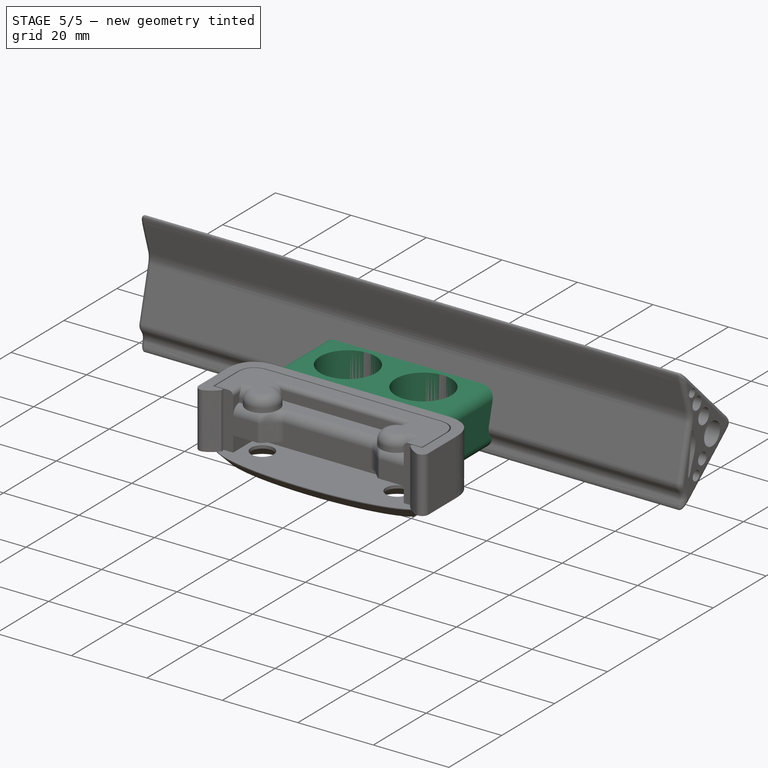
[diagram: stage 5 of 5 — iso view after this stage's code; geometry added in this stage tinted green]
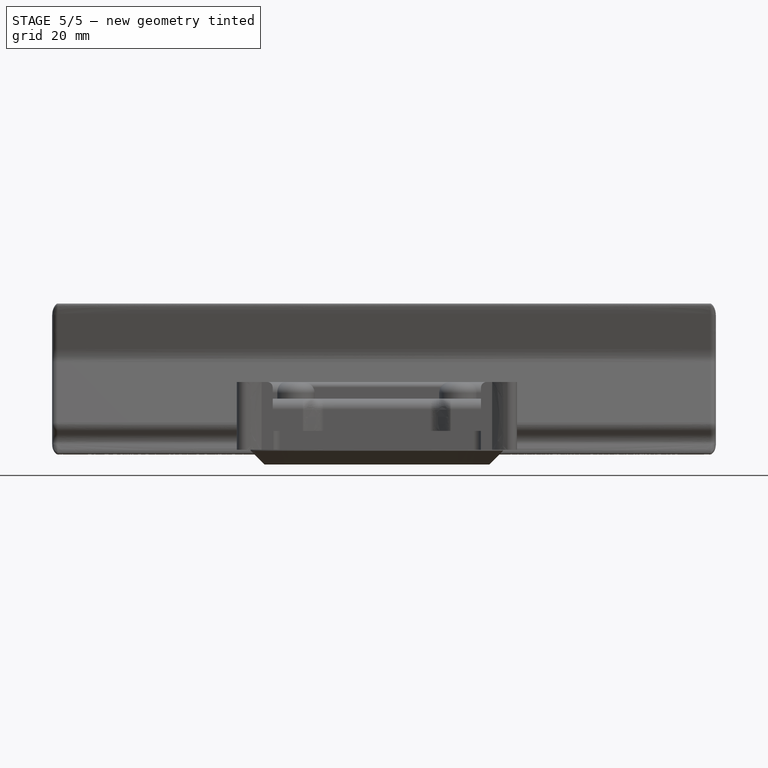
[diagram: stage 5 of 5 — front view after this stage's code; geometry added in this stage tinted green]
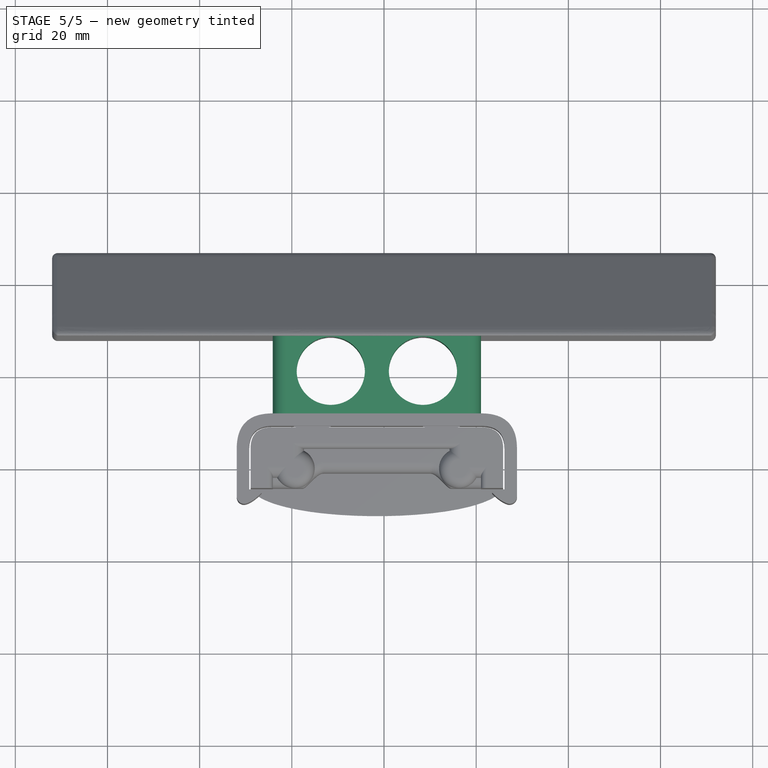
[diagram: stage 5 of 5 — top view after this stage's code; geometry added in this stage tinted green]
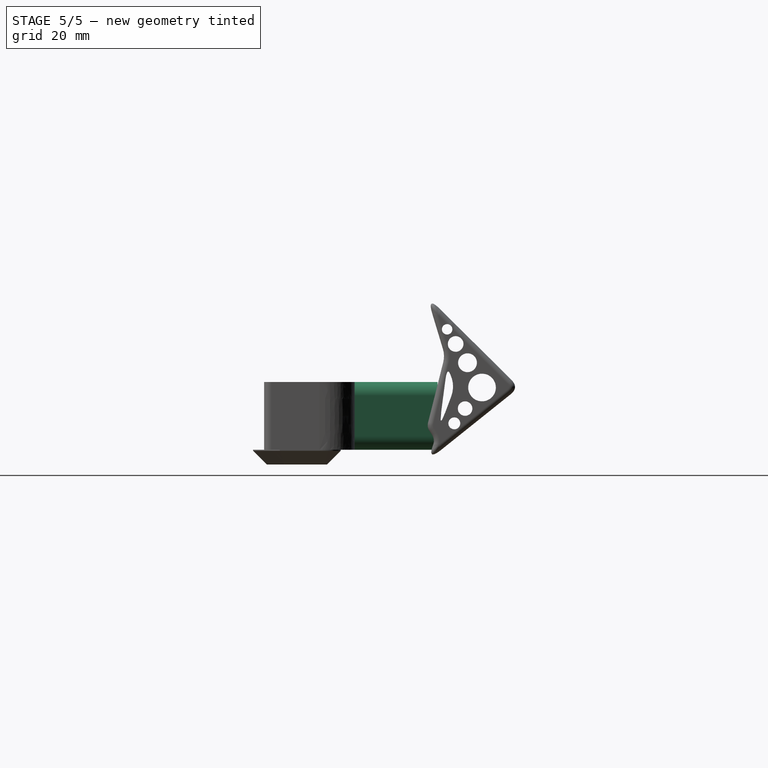
[diagram: stage 5 of 5 — right view after this stage's code; geometry added in this stage tinted green]
FEATURE [Sketcher::SketchObject] Sketch003  label="mainBumpperPieceAttatchment"
  FullyConstrained = true
  sketch-geometry (42):
    g0: Circle CenterX=28.85 CenterY=4.3 CenterZ=0 NormalX=0 NormalY=0 NormalZ=1 AngleXU=0 Radius=1
    g1: Circle CenterX=28.85 CenterY=11.9 CenterZ=0 NormalX=0 NormalY=0 NormalZ=1 AngleXU=0 Radius=1
    g2: Circle CenterX=21.05 CenterY=11.9 CenterZ=0 NormalX=0 NormalY=0 NormalZ=1 AngleXU=0 Radius=1
    g3: BSplineCurve PolesCount=3 KnotsCount=2 Degree=2 IsPeriodic=0
    g4: GeomPoint X=28.85 Y=4.3 Z=0
    g5: GeomPoint X=21.05 Y=11.9 Z=0
    g6: LineSegment StartX=-21.05 StartY=11.9 StartZ=0 EndX=21.05 EndY=11.9 EndZ=0
    g7: LineSegment StartX=28.85 StartY=4.3 StartZ=0 EndX=28.85 EndY=-4.3 EndZ=0
    g8: Circle CenterX=21.05 CenterY=9.2 CenterZ=0 NormalX=0 NormalY=0 NormalZ=1 AngleXU=0 Radius=1
    g9: Circle CenterX=26.15 CenterY=9.2 CenterZ=0 NormalX=0 NormalY=0 NormalZ=1 AngleXU=0 Radius=1
    g10: Circle CenterX=26.15 CenterY=4.3 CenterZ=0 NormalX=0 NormalY=0 NormalZ=1 AngleXU=0 Radius=1
    g11: BSplineCurve PolesCount=3 KnotsCount=2 Degree=2 IsPeriodic=0
    g12: GeomPoint X=21.05 Y=9.2 Z=0
    g13: GeomPoint X=26.15 Y=4.3 Z=0
    g14: LineSegment StartX=-21.05 StartY=9.2 StartZ=0 EndX=21.05 EndY=9.2 EndZ=0
    g15: LineSegment StartX=26.15 StartY=-4.3 StartZ=0 EndX=26.15 EndY=4.3 EndZ=0
    g16: LineSegment StartX=26.15 StartY=-4.3 StartZ=0 EndX=26.15 EndY=-4.6 EndZ=0
    g17: LineSegment StartX=23.45 StartY=-4.6 StartZ=0 EndX=26.15 EndY=-4.6 EndZ=0
    g18: LineSegment StartX=28.85 StartY=-4.3 StartZ=0 EndX=28.85 EndY=-7.9 EndZ=0
    g19: LineSegment StartX=23.45 StartY=-4.6 StartZ=0 EndX=23.45 EndY=-5.3 EndZ=0
    g20: Circle CenterX=28.85 CenterY=-7.9 CenterZ=0 NormalX=0 NormalY=0 NormalZ=1 AngleXU=0 Radius=1
    g21: Circle CenterX=26.15 CenterY=-8.2 CenterZ=0 NormalX=0 NormalY=0 NormalZ=1 AngleXU=0 Radius=1
    g22: Circle CenterX=23.45 CenterY=-5.3 CenterZ=0 NormalX=0 NormalY=0 NormalZ=1 AngleXU=0 Radius=1
    g23: BSplineCurve PolesCount=3 KnotsCount=2 Degree=2 IsPeriodic=0
    g24: GeomPoint X=28.85 Y=-7.9 Z=0
    g25: GeomPoint X=23.45 Y=-5.3 Z=0
    g26: LineSegment StartX=-21.05 StartY=9.2 StartZ=0 EndX=-24.15 EndY=9.2 EndZ=0
    g27: BSplineCurve PolesCount=3 KnotsCount=2 Degree=2 IsPeriodic=0
    g28: LineSegment StartX=-29.25 StartY=-4.3 StartZ=0 EndX=-29.25 EndY=-4.6 EndZ=0
    g29: LineSegment StartX=-29.25 StartY=-4.6 StartZ=0 EndX=-26.55 EndY=-4.6 EndZ=0
    g30: LineSegment StartX=-31.95 StartY=-4.3 StartZ=0 EndX=-31.95 EndY=-7.9 EndZ=0
    g31: LineSegment StartX=-26.55 StartY=-4.6 StartZ=0 EndX=-26.55 EndY=-5.3 EndZ=0
    g32: Circle CenterX=-31.95 CenterY=-7.9 CenterZ=0 NormalX=0 NormalY=0 NormalZ=1 AngleXU=0 Radius=1
    g33: Circle CenterX=-29.25 CenterY=-8.2 CenterZ=0 NormalX=0 NormalY=0 NormalZ=1 AngleXU=0 Radius=1
    g34: Circle CenterX=-26.55 CenterY=-5.3 CenterZ=0 NormalX=0 NormalY=0 NormalZ=1 AngleXU=0 Radius=1
    g35: BSplineCurve PolesCount=3 KnotsCount=2 Degree=2 IsPeriodic=0
    g36: GeomPoint X=-31.95 Y=-7.9 Z=0
    g37: GeomPoint X=-26.55 Y=-5.3 Z=0
    g38: LineSegment StartX=-31.95 StartY=4.3 StartZ=0 EndX=-31.95 EndY=-4.3 EndZ=0
    g39: LineSegment StartX=-29.25 StartY=-4.3 StartZ=0 EndX=-29.25 EndY=4.3 EndZ=0
    g40: BSplineCurve PolesCount=3 KnotsCount=2 Degree=2 IsPeriodic=0
    g41: LineSegment StartX=-21.05 StartY=11.9 StartZ=0 EndX=-24.15 EndY=11.9 EndZ=0
  constraints (78):
    c: Weight(g0) = 1
    c: Equal(g0,g1)
    c: Equal(g0,g2)
    c: InternalAlignment(g0,g3)
    c: InternalAlignment(g1,g3)
    c: InternalAlignment(g2,g3)
    c: InternalAlignment(g4,g3)
    c: InternalAlignment(g5,g3)
    c: Block(g3)
    c: Horizontal(g6)
    c: Vertical(g7)
    c: Block(g7)
    c: Block(g6)
    c: Weight(g8) = 1
    c: Equal(g8,g9)
    c: Equal(g8,g10)
    c: InternalAlignment(g8,g11)
    c: InternalAlignment(g9,g11)
    c: InternalAlignment(g10,g11)
    c: InternalAlignment(g12,g11)
    c: InternalAlignment(g13,g11)
    c: Horizontal(g14)
    c: Vertical(g15)
    c: Block(g11)
    c: Block(g15)
    c: Block(g14)
    c: Coincident(g16,g15)
    c: Vertical(g16)
    c: Distance(g16) = 0.3
    c: Horizontal(g17)
    c: Coincident(g17,g16)
    c: Coincident(g18,g7)
    c: Vertical(g18)
    c: Distance(g18) = 3.6
    c: Vertical(g19)
    c: Coincident(g19,g17)
    c: Coincident(g23,g18)
    c: Weight(g20) = 1
    c: Equal(g20,g21)
    c: Equal(g20,g22)
    c: Coincident(g23,g19)
    c: InternalAlignment(g20,g23)
    c: InternalAlignment(g21,g23)
    c: InternalAlignment(g22,g23)
    c: InternalAlignment(g24,g23)
    c: InternalAlignment(g25,g23)
    c: Block(g23)
    c: Horizontal(g26)
    c: Distance(g26) = 3.1
    c: Block(g27)
    c: Vertical(g38)
    c: Block(g38)
    c: Vertical(g39)
    c: Block(g40)
    c: Block(g39)
    c: Vertical(g28)
    c: Coincident(g28,g39)
    c: Coincident(g29,g28)
    c: Horizontal(g29)
    c: Vertical(g30)
    c: Coincident(g30,g38)
    c: Coincident(g31,g29)
    c: Vertical(g31)
    c: Coincident(g35,g30)
    c: Equal(g32,g33)
    c: Equal(g32,g34)
    c: Coincident(g35,g31)
    c: InternalAlignment(g32,g35)
    c: InternalAlignment(g33,g35)
    c: InternalAlignment(g34,g35)
    c: InternalAlignment(g36,g35)
    c: InternalAlignment(g37,g35)
    c: Block(g35)
    c: Coincident(g40,g26)
    c: Block(g29)
    c: Horizontal(g41)
    c: Equal(g26,g41) = 3.1
    c: Coincident(g41,g6)
FEATURE [Part::Box] Box  label="bumpperExtension"
  AttacherType = Attacher::AttachEngine3D
  Height = 14.7
  Length = 45.2
  Placement = pos=(-24.15,11.9,-4.1) rot=(0,0,1;0rad)
  Width = 18
FEATURE [Part::Cylinder] Cylinder  label="removeFromBumpperExtension"
  Angle = 360
  AttacherType = Attacher::AttachEngine3D
  Height = 20
  Placement = pos=(8.45,21.15,-8) rot=(0,0,1;0rad)
  Radius = 7.4
FEATURE [Part::Cylinder] Cylinder001  label="removeFromBumpperExtension001"
  Angle = 360
  AttacherType = Attacher::AttachEngine3D
  Height = 20
  Placement = pos=(-11.55,21.15,-8) rot=(0,0,1;0rad)
  Radius = 7.4
FEATURE [Part::MultiFuse] Fusion  label="removeFromBumpperExtension002"
  Shapes = -> [Cylinder,Cylinder001]
FEATURE [Part::Cut] Cut  label="bumpperExtension001"
  Base = -> Box
  Tool = -> Fusion
FEATURE [Part::Fillet] Fillet  label="bumpperExtension002"
  Base = -> Cut
  Edges = 4 edges r=3: [Edge2,Edge4,Edge9,Edge14]
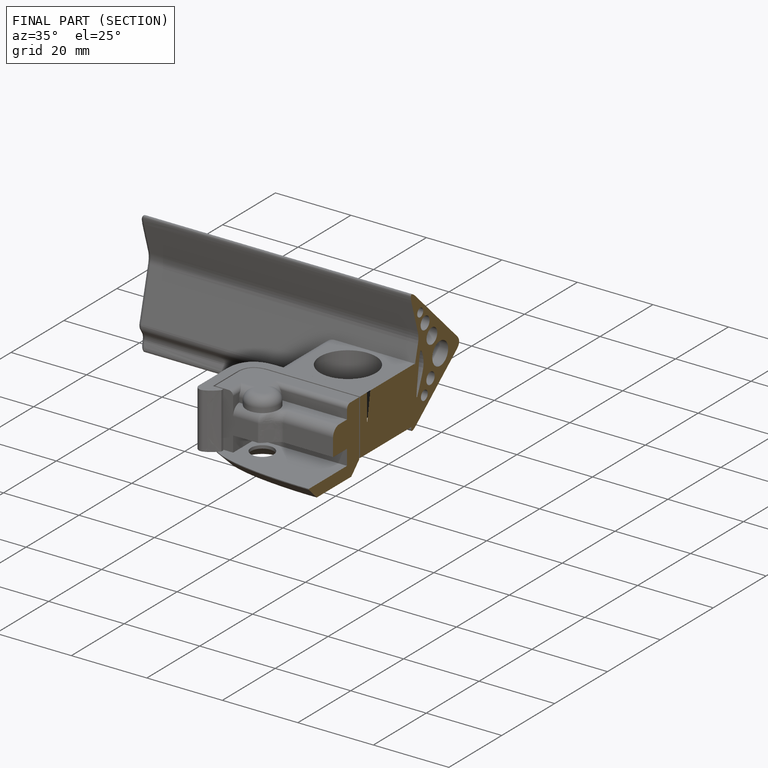
[diagram: finished part — half-section view (interior)]
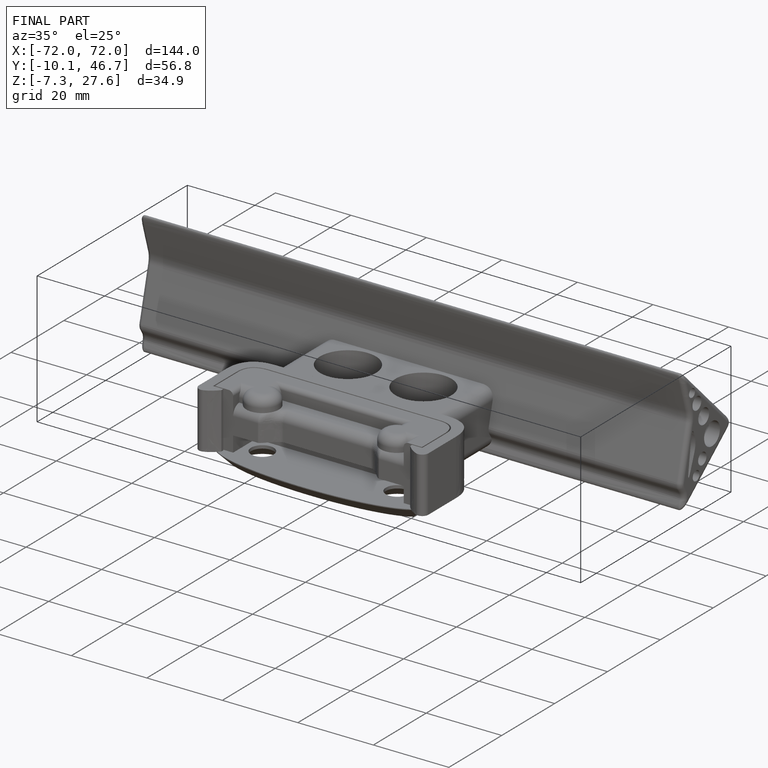
[diagram: finished part — iso view with bounding-box wireframe]
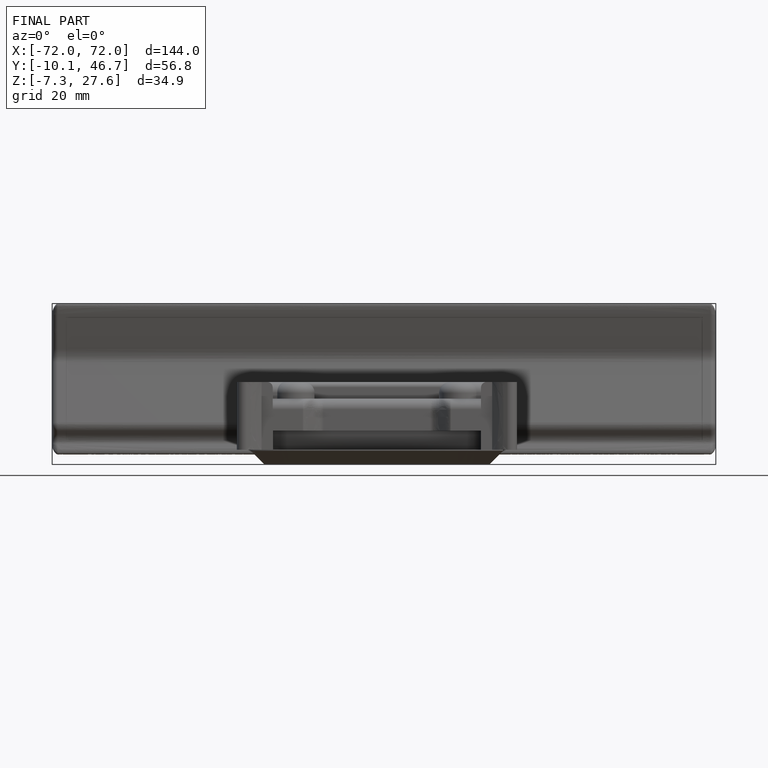
[diagram: finished part — front view with bounding-box wireframe]
